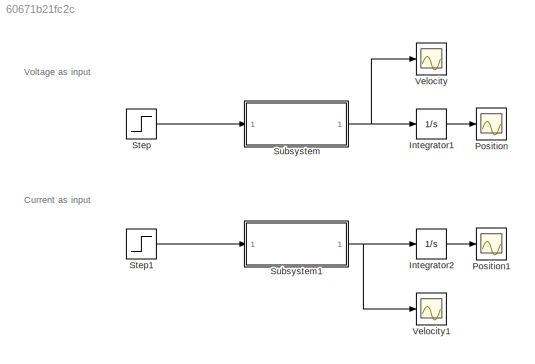
MODEL slx_60671b21fc2c
KIND model
CONFIG AbsTol = auto
CONFIG EnableMultiTasking = off
CONFIG FixedStep = auto
CONFIG MaxStep = auto
CONFIG MinStep = auto
CONFIG RelTol = 1e-3
CONFIG SampleTimeConstraint = Unconstrained
CONFIG Solver = VariableStepAuto
CONFIG SolverName = VariableStepAuto
CONFIG StartTime = 0.0
CONFIG StopTime = 10.0
BLOCK [Integrator] Integrator1
  Ports = [1, 1]
BLOCK [Integrator] Integrator2
  Ports = [1, 1]
BLOCK [Scope] Position
  NumInputPorts = 1
  Ports = [1]
  ScopeSpecificationString = Simulink.scopes.TimeScopeBlockCfg('CurrentConfiguration', extmgr.ConfigurationSet(extmgr.Configuration('Core','General UI',true),extmgr.Configuration('Core','Source UI',true),extmgr.Configuration('Sources','WiredSimulink',true,'DataLoggingVariableName','ScopeData1'),extmgr.Configuration('Visuals','Time Domain',true,'SerializedDisplays',{struct('MinYLimReal','-0.00084','MaxYLimReal','0.0076','YLabe...<+1366ch>
BLOCK [Scope] Position1
  NumInputPorts = 1
  Ports = [1]
  ScopeSpecificationString = Simulink.scopes.TimeScopeBlockCfg('CurrentConfiguration', extmgr.ConfigurationSet(extmgr.Configuration('Core','General UI',true),extmgr.Configuration('Core','Source UI',true),extmgr.Configuration('Sources','WiredSimulink',true,'DataLoggingVariableName','ScopeData2'),extmgr.Configuration('Visuals','Time Domain',true,'SerializedDisplays',{struct('MinYLimReal','-0.0946','MaxYLimReal','0.85138','YLabe...<+1368ch>
BLOCK [Step] Step
  SampleTime = 0
BLOCK [Step] Step1
  SampleTime = 0
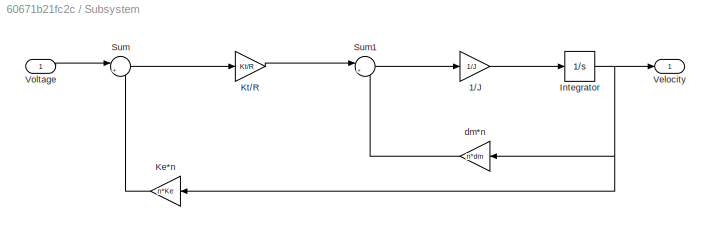
BLOCK [SubSystem] Subsystem
  Ports = [1, 1]
  RequestExecContextInheritance = off
  Variant = off
BLOCK [Gain] Subsystem/1//J
  Gain = 1/J
  OutDataTypeStr = Inherit: Inherit via internal rule
  ParamDataTypeStr = Inherit: Inherit via internal rule
  SaturateOnIntegerOverflow = off
BLOCK [Integrator] Subsystem/Integrator
  Ports = [1, 1]
BLOCK [Gain] Subsystem/Ke*n
  Gain = n*Ke
  OutDataTypeStr = Inherit: Inherit via internal rule
  ParamDataTypeStr = Inherit: Inherit via internal rule
  SaturateOnIntegerOverflow = off
BLOCK [Gain] Subsystem/Kt//R
  Gain = Kt/R
  OutDataTypeStr = Inherit: Inherit via internal rule
  ParamDataTypeStr = Inherit: Inherit via internal rule
  SaturateOnIntegerOverflow = off
BLOCK [Sum] Subsystem/Sum
  IconShape = round
  InputSameDT = off
  Inputs = |+-
  OutDataTypeStr = Inherit: Inherit via internal rule
  Ports = [2, 1]
  SaturateOnIntegerOverflow = off
BLOCK [Sum] Subsystem/Sum1
  IconShape = round
  InputSameDT = off
  Inputs = |+-
  OutDataTypeStr = Inherit: Inherit via internal rule
  Ports = [2, 1]
  SaturateOnIntegerOverflow = off
BLOCK [Outport] Subsystem/Velocity 
  IconDisplay = Port number
BLOCK [Inport] Subsystem/Voltage
  IconDisplay = Port number
BLOCK [Gain] Subsystem/dm*n
  Gain = n*dm
  OutDataTypeStr = Inherit: Inherit via internal rule
  ParamDataTypeStr = Inherit: Inherit via internal rule
  SaturateOnIntegerOverflow = off
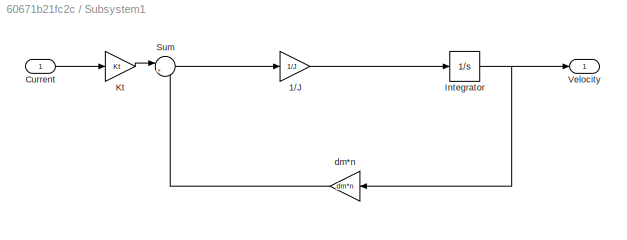
BLOCK [SubSystem] Subsystem1
  Ports = [1, 1]
  RequestExecContextInheritance = off
  Variant = off
BLOCK [Gain] Subsystem1/1//J
  Gain = 1/J
  OutDataTypeStr = Inherit: Inherit via internal rule
  ParamDataTypeStr = Inherit: Inherit via internal rule
  SaturateOnIntegerOverflow = off
BLOCK [Inport] Subsystem1/Current
  IconDisplay = Port number
BLOCK [Integrator] Subsystem1/Integrator
  Ports = [1, 1]
BLOCK [Gain] Subsystem1/Kt
  Gain = Kt
  OutDataTypeStr = Inherit: Inherit via internal rule
  ParamDataTypeStr = Inherit: Inherit via internal rule
  SaturateOnIntegerOverflow = off
BLOCK [Sum] Subsystem1/Sum
  IconShape = round
  InputSameDT = off
  Inputs = |+-
  OutDataTypeStr = Inherit: Inherit via internal rule
  Ports = [2, 1]
  SaturateOnIntegerOverflow = off
BLOCK [Outport] Subsystem1/Velocity 
  IconDisplay = Port number
BLOCK [Gain] Subsystem1/dm*n
  Gain = dm*n
  OutDataTypeStr = Inherit: Inherit via internal rule
  ParamDataTypeStr = Inherit: Inherit via internal rule
  SaturateOnIntegerOverflow = off
BLOCK [Scope] Velocity
  NumInputPorts = 1
  Ports = [1]
  ScopeSpecificationString = Simulink.scopes.TimeScopeBlockCfg('CurrentConfiguration', extmgr.ConfigurationSet(extmgr.Configuration('Core','General UI',true),extmgr.Configuration('Core','Source UI',true),extmgr.Configuration('Sources','WiredSimulink',true),extmgr.Configuration('Visuals','Time Domain',true,'SerializedDisplays',{struct('MinYLimReal','-0.00019','MaxYLimReal','0.00169','YLabelReal','','MinYLimMag','0.00000','MaxY...<+1329ch>
BLOCK [Scope] Velocity1
  NumInputPorts = 1
  Ports = [1]
  ScopeSpecificationString = Simulink.scopes.TimeScopeBlockCfg('CurrentConfiguration', extmgr.ConfigurationSet(extmgr.Configuration('Core','General UI',true),extmgr.Configuration('Core','Source UI',true),extmgr.Configuration('Sources','WiredSimulink',true,'DataLoggingVariableName','ScopeData3'),extmgr.Configuration('Visuals','Time Domain',true,'SerializedDisplays',{struct('MinYLimReal','-0.02102','MaxYLimReal','0.18919','YLab...<+1369ch>
ANNOTATION (root): Current as input
ANNOTATION (root): Voltage as input
LINE Integrator1:1 -> Position:1
LINE Integrator2:1 -> Position1:1
LINE Step1:1 -> Subsystem1:1
LINE Step:1 -> Subsystem:1
LINE Subsystem/1//J:1 -> Subsystem/Integrator:1
NET Subsystem/Integrator:1 -> Subsystem/Ke*n:1, Subsystem/Velocity :1, Subsystem/dm*n:1
LINE Subsystem/Ke*n:1 -> Subsystem/Sum:2
LINE Subsystem/Kt//R:1 -> Subsystem/Sum1:1
LINE Subsystem/Sum1:1 -> Subsystem/1//J:1
LINE Subsystem/Sum:1 -> Subsystem/Kt//R:1
LINE Subsystem/Voltage:1 -> Subsystem/Sum:1
LINE Subsystem/dm*n:1 -> Subsystem/Sum1:2
LINE Subsystem1/1//J:1 -> Subsystem1/Integrator:1
LINE Subsystem1/Current:1 -> Subsystem1/Kt:1
NET Subsystem1/Integrator:1 -> Subsystem1/Velocity :1, Subsystem1/dm*n:1
LINE Subsystem1/Kt:1 -> Subsystem1/Sum:1
LINE Subsystem1/Sum:1 -> Subsystem1/1//J:1
LINE Subsystem1/dm*n:1 -> Subsystem1/Sum:2
NET Subsystem1:1 -> Integrator2:1, Velocity1:1
NET Subsystem:1 -> Integrator1:1, Velocity:1
note: NET lines group one-source signal fan-out (src -> all destinations, sorted); 1:1 wires keep LINE
